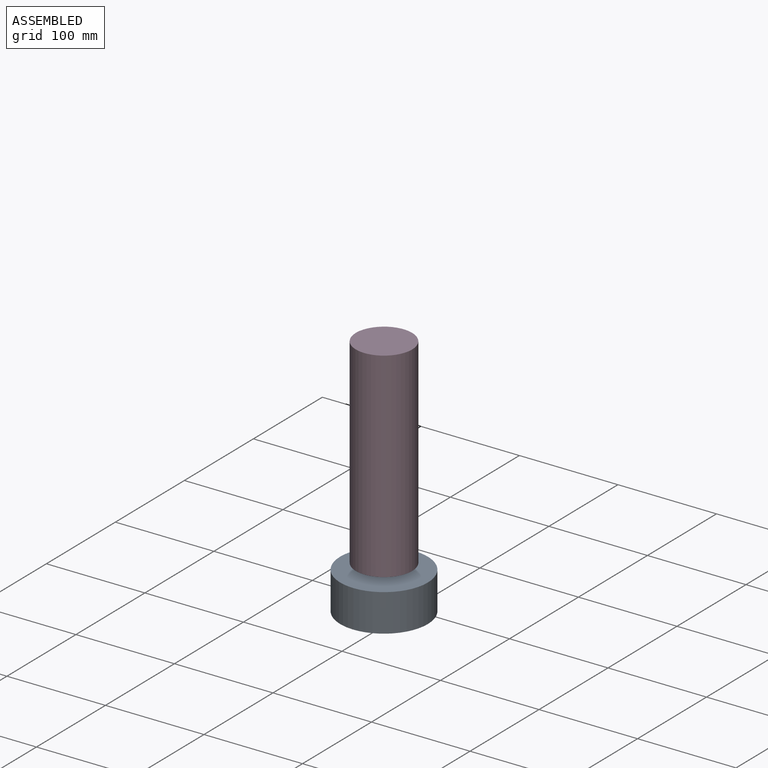
[diagram: assembled view]
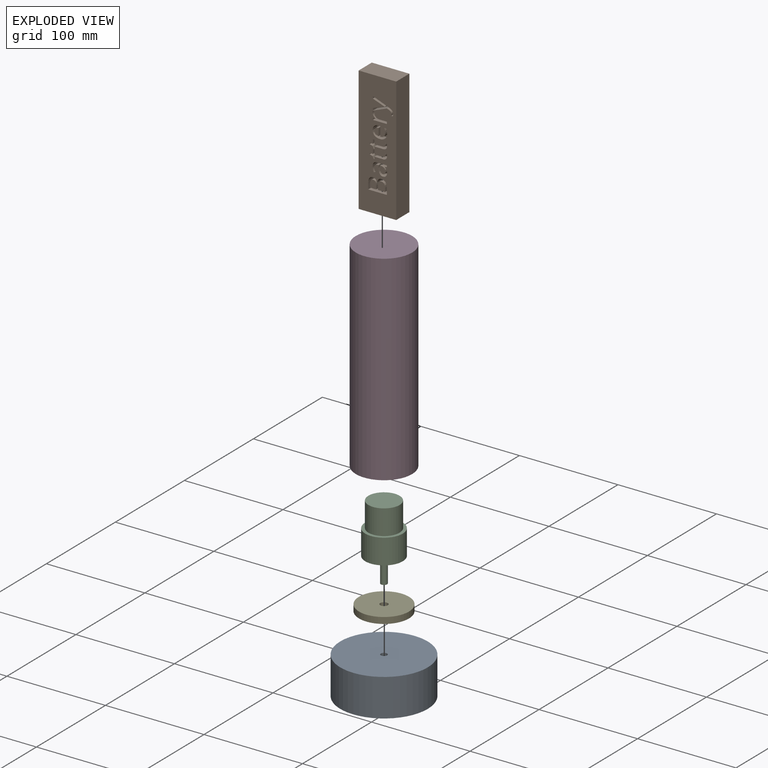
[diagram: exploded view]
GUIDED TOUR — MATED ASSEMBLY (Onshape document 1833e53e65c8655d361f19d9, AutoMate assembly 1833e53e65c8655d361f19d9_b5952b8d5b761dd84507691a_6c6ec64aa4249d387026ec80_default)

This assembly has 5 components, labeled P0..P4 below (a component is one placed occurrence of a part; the same part can appear more than once), held together by 4 mates. A mate is a constraint between two components; its type names the relative motion it leaves free:
  FASTENED — locks the two components together rigidly (no relative motion).
Axis/direction vectors are unit vectors and 'through' points are millimeter coordinates, both in the assembly's world frame.

MATES
  1. FASTENED "Fastened 2": P4 <-> P2, direction (0.000, 0.000, 1.000) through (-15.76, -59.32, -43.28) mm
  2. FASTENED "Fastened 3": P4 <-> P3, direction (0.000, 0.000, -1.000) through (-15.76, -59.32, -49.63) mm
  3. FASTENED "Fastened 4": P0 <-> P2, direction (0.000, 0.000, -1.000) through (-15.76, -59.32, -68.68) mm
  4. FASTENED "Fastened 1": P3 <-> P1, direction (0.000, 0.000, -1.000) through (-15.76, -59.32, 150.39) mm

ASSEMBLY ORDER
  1. P2 — the base component [order heuristic]
  2. P4 — core [order heuristic]
  3. P0 — core [order heuristic]
  4. P3 — core [order heuristic]
  5. P1 [order verified]
Order-tag legend:
  [order verified] — this step's position reverses a verified removal order: the component was checked to insert without passing through the ones already placed.
  [order heuristic] — the first 4 components form the assembly's core: parts whose collision-free extraction could not be verified, listed in mate-graph order.

Of the 5 components, 0 carry the full construction recipe — the FeatureScript program that regenerates the part's solid from scratch; the rest are supplied as boundary geometry only.
Each toured component is shown spotlighted twice — in the assembled view, then in the exploded view, where a leader line traces a displaced component back to its assembled socket (saturated green if recipe-attached, orange if geometry-only; every other component desaturated gray) — followed by its recipe or geometry summary and the mates that hold it.
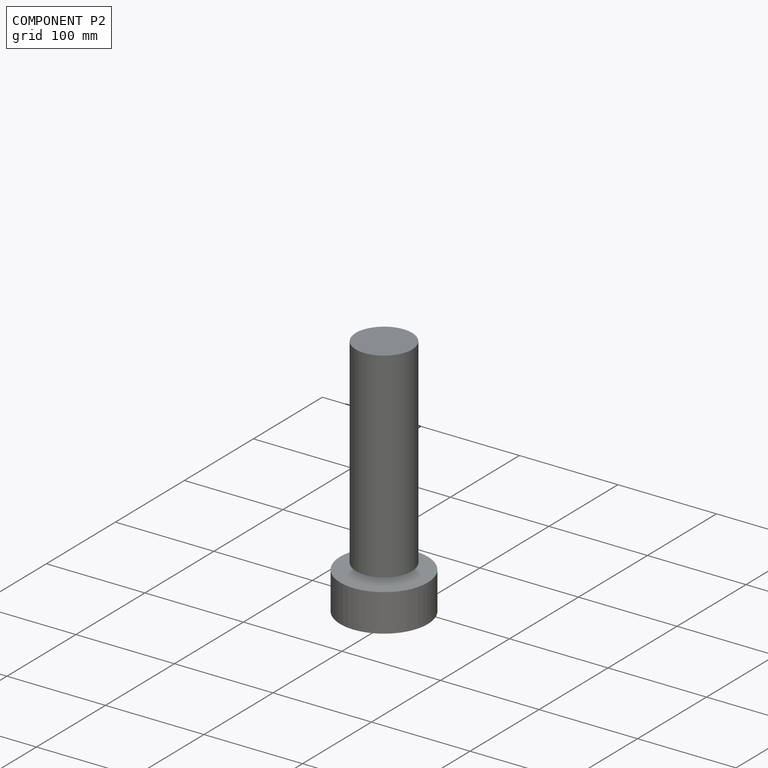
[diagram: component P2 — assembled]
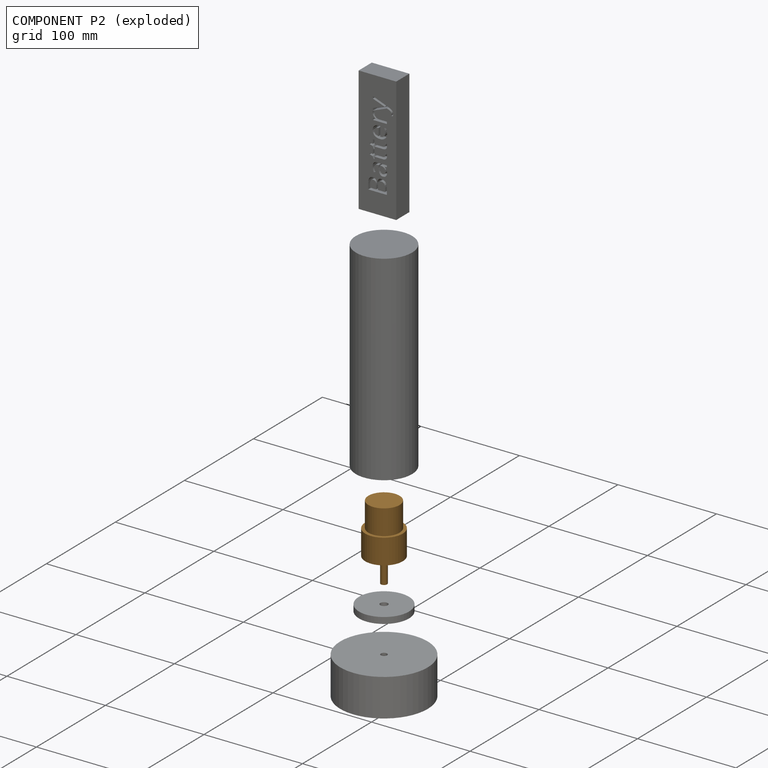
[diagram: component P2 — exploded]
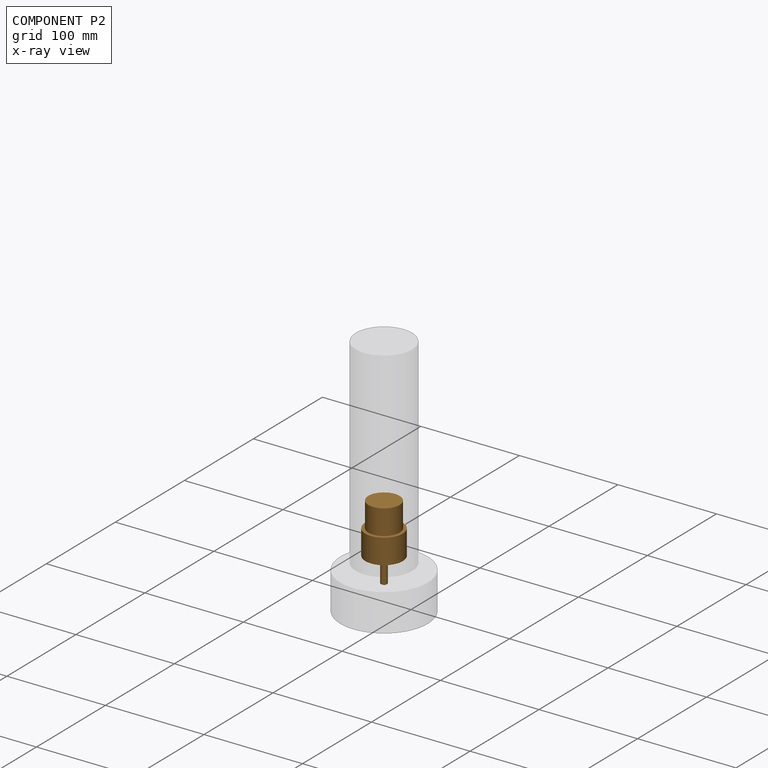
[diagram: component P2 — x-ray view]
COMPONENT P2 — geometry summary (no construction recipe available for this part):
  bounding box: 76.2 x 38.1 x 38.1 mm
  B-rep topology: 1 solid, 7 faces, 18 edges
  volume: 49873 mm^3 (45% of its bounding box)
  symmetry: revolution-symmetric about the z axis through its bounding-box center; mirror-symmetric across its x mid-plane, y mid-plane
Held by: FASTENED mate "Fastened 2" to P4; FASTENED mate "Fastened 4" to P0.
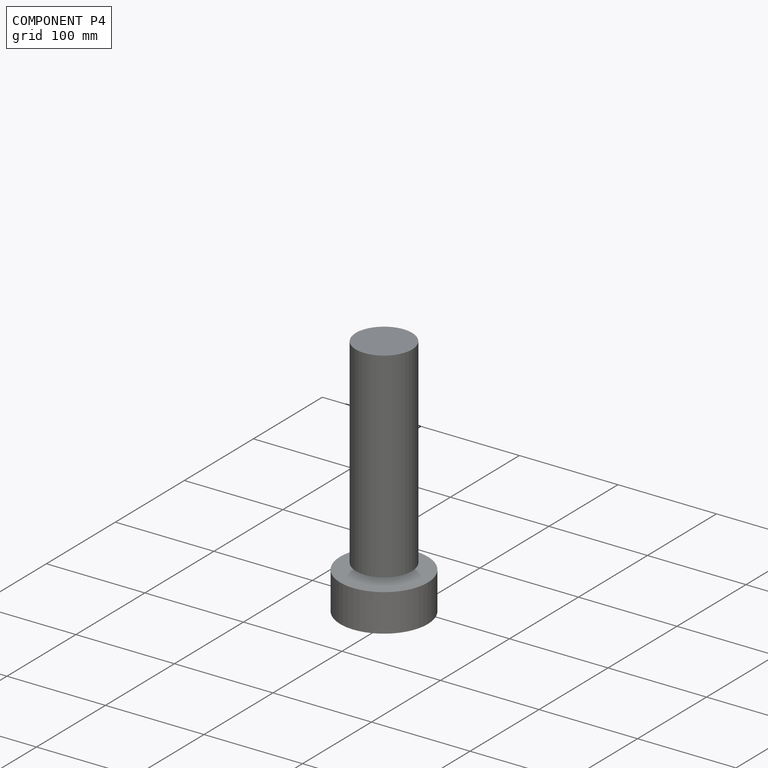
[diagram: component P4 — assembled]
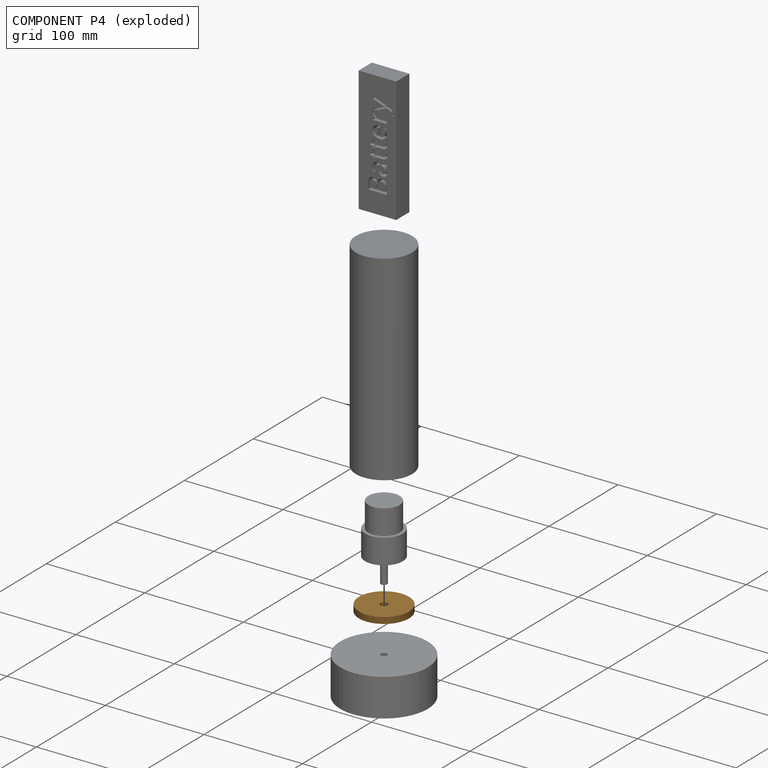
[diagram: component P4 — exploded]
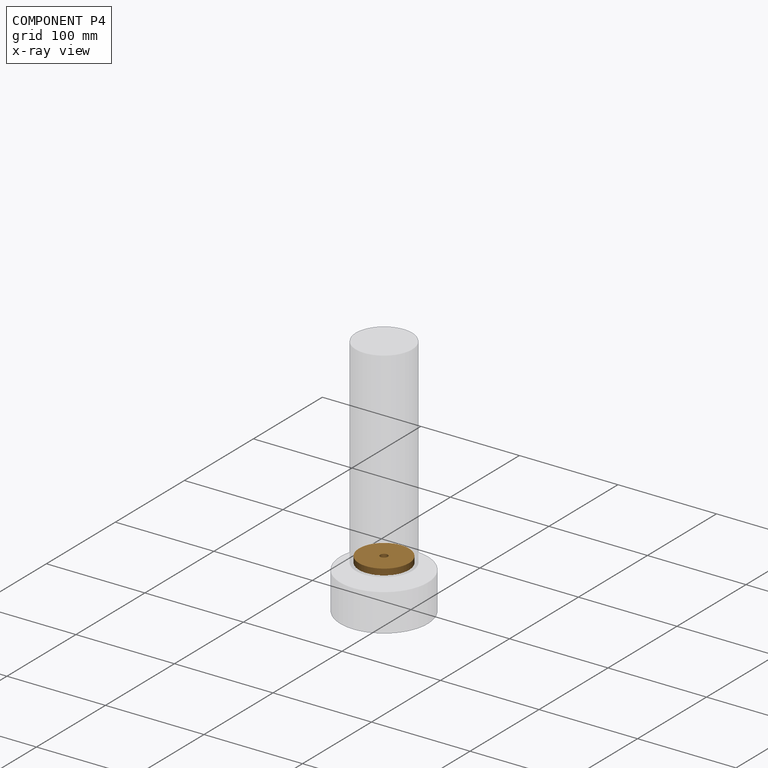
[diagram: component P4 — x-ray view]
COMPONENT P4 — geometry summary (no construction recipe available for this part):
  bounding box: 50.8 x 50.8 x 6.4 mm
  B-rep topology: 1 solid, 4 faces, 12 edges
  volume: 12581 mm^3 (77% of its bounding box)
  symmetry: 2-fold rotationally symmetric about the x axis; 2-fold rotationally symmetric about the y axis; revolution-symmetric about the z axis through its bounding-box center; mirror-symmetric across its x mid-plane, y mid-plane, z mid-plane
Held by: FASTENED mate "Fastened 2" to P2; FASTENED mate "Fastened 3" to P3.
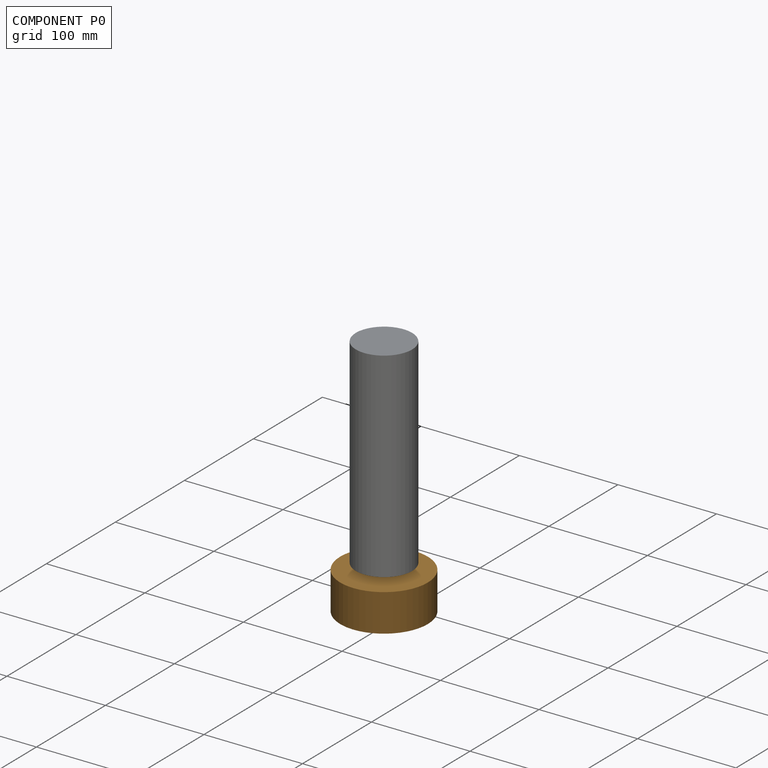
[diagram: component P0 — assembled]
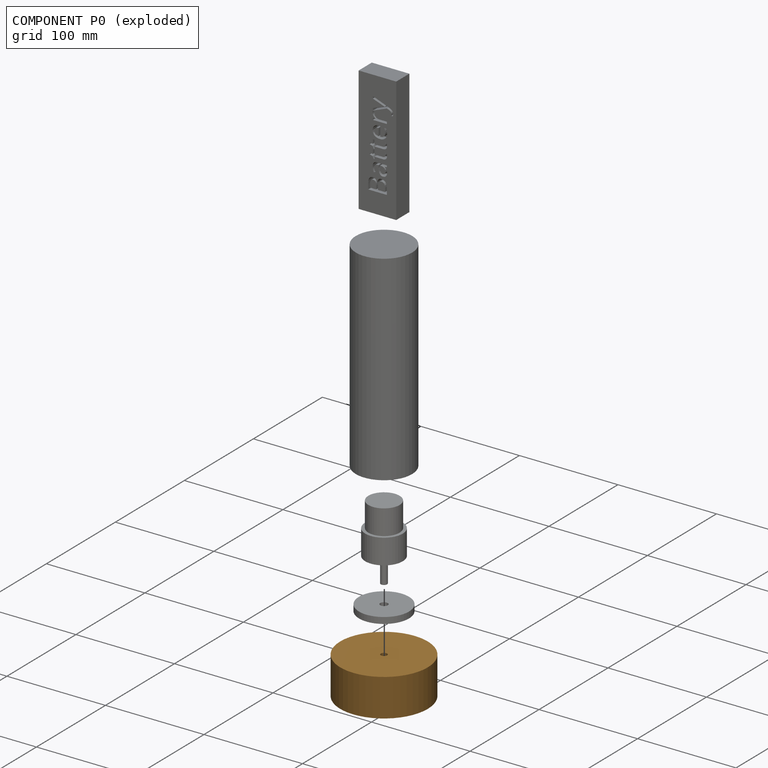
[diagram: component P0 — exploded]
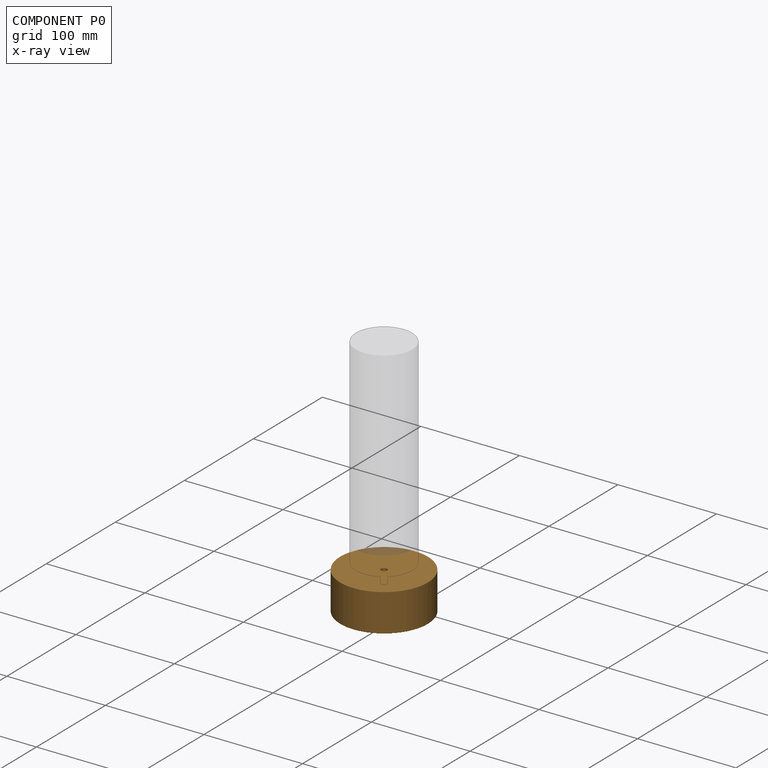
[diagram: component P0 — x-ray view]
COMPONENT P0 — geometry summary (no construction recipe available for this part):
  bounding box: 88.9 x 88.9 x 38.1 mm
  B-rep topology: 1 solid, 6 faces, 18 edges
  volume: 176297 mm^3 (59% of its bounding box)
  symmetry: revolution-symmetric about the z axis through its bounding-box center; mirror-symmetric across its x mid-plane, y mid-plane
Held by: FASTENED mate "Fastened 4" to P2.
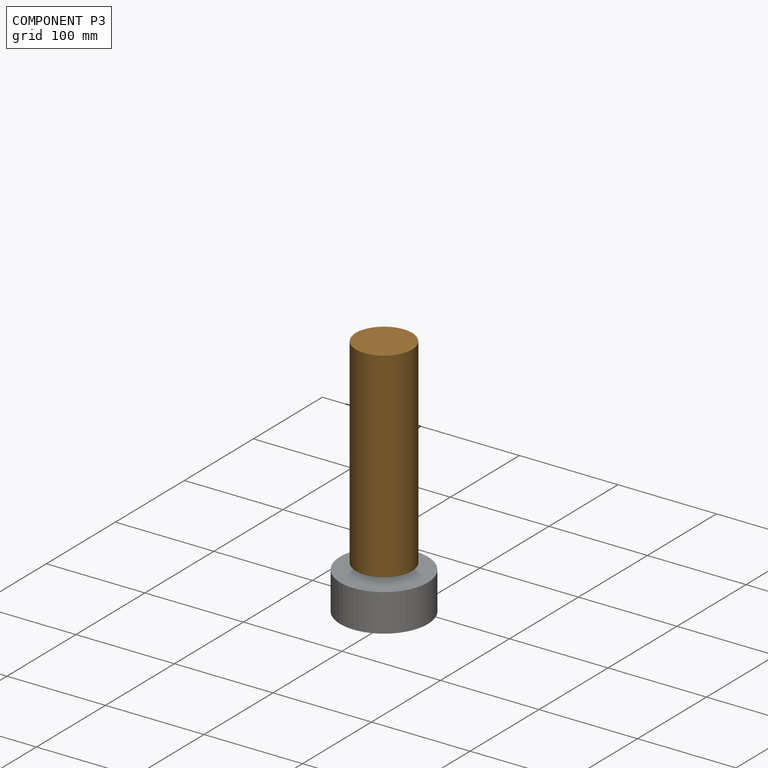
[diagram: component P3 — assembled]
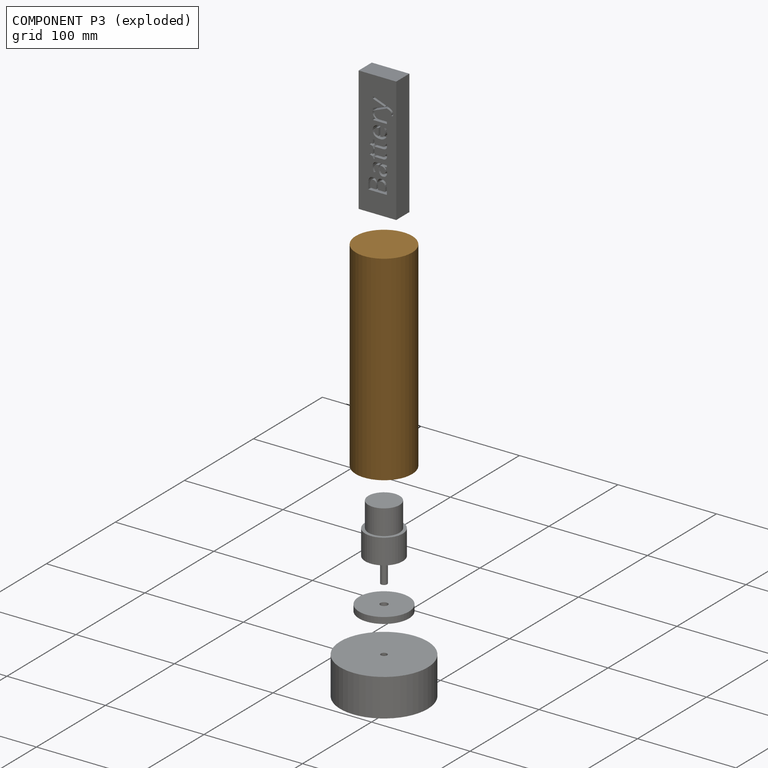
[diagram: component P3 — exploded]
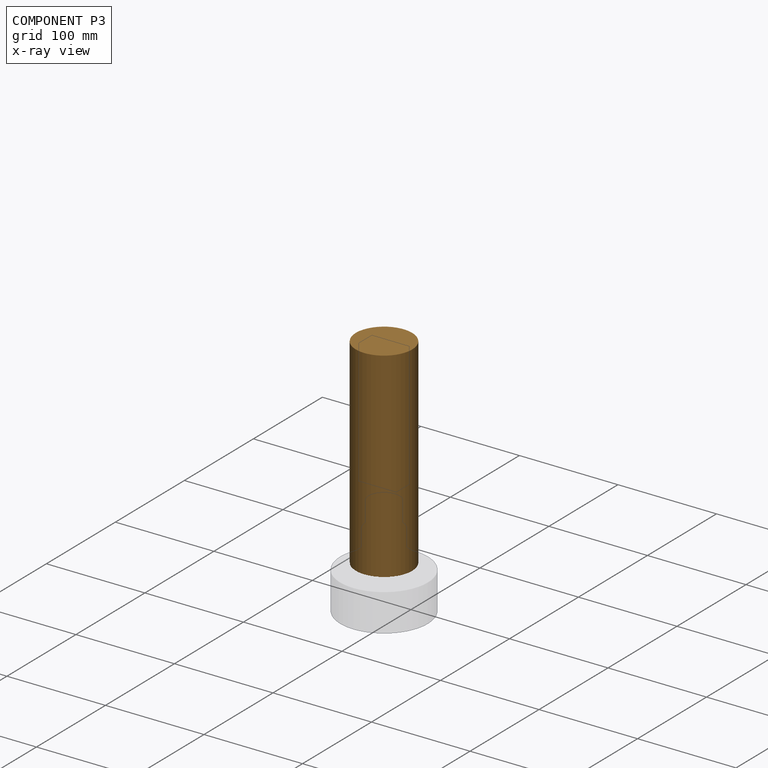
[diagram: component P3 — x-ray view]
COMPONENT P3 — geometry summary (no construction recipe available for this part):
  bounding box: 203.2 x 57.2 x 57.2 mm
  B-rep topology: 1 solid, 5 faces, 12 edges
  volume: 115833 mm^3 (17% of its bounding box)
  symmetry: revolution-symmetric about the z axis through its bounding-box center; mirror-symmetric across its x mid-plane, y mid-plane
Held by: FASTENED mate "Fastened 3" to P4; FASTENED mate "Fastened 1" to P1.
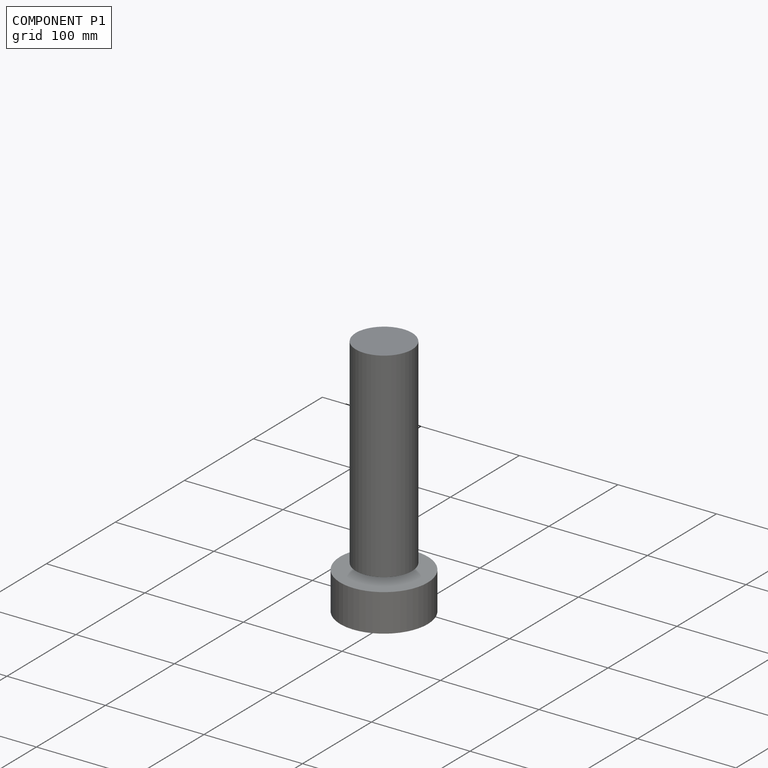
[diagram: component P1 — assembled]
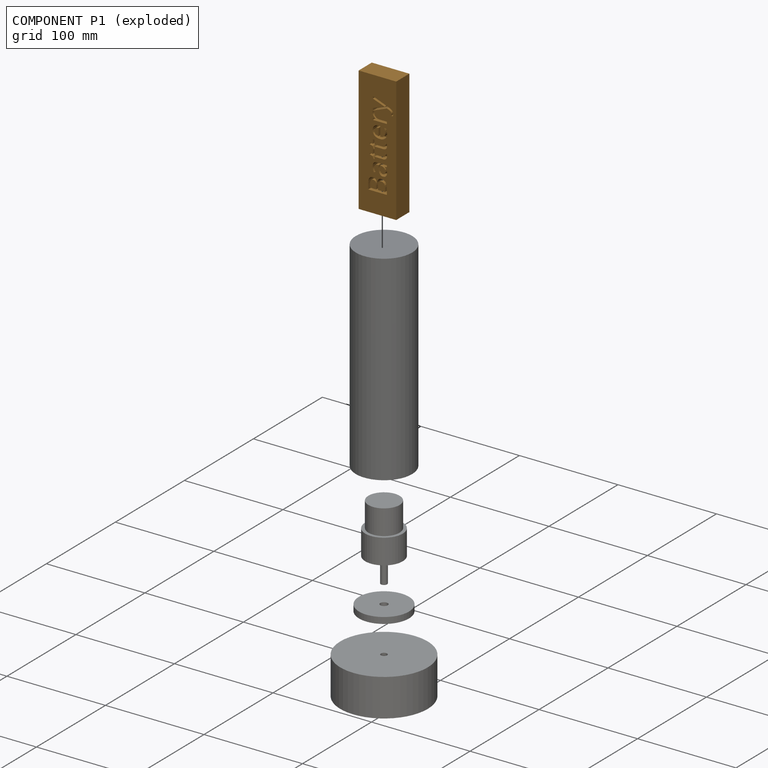
[diagram: component P1 — exploded]
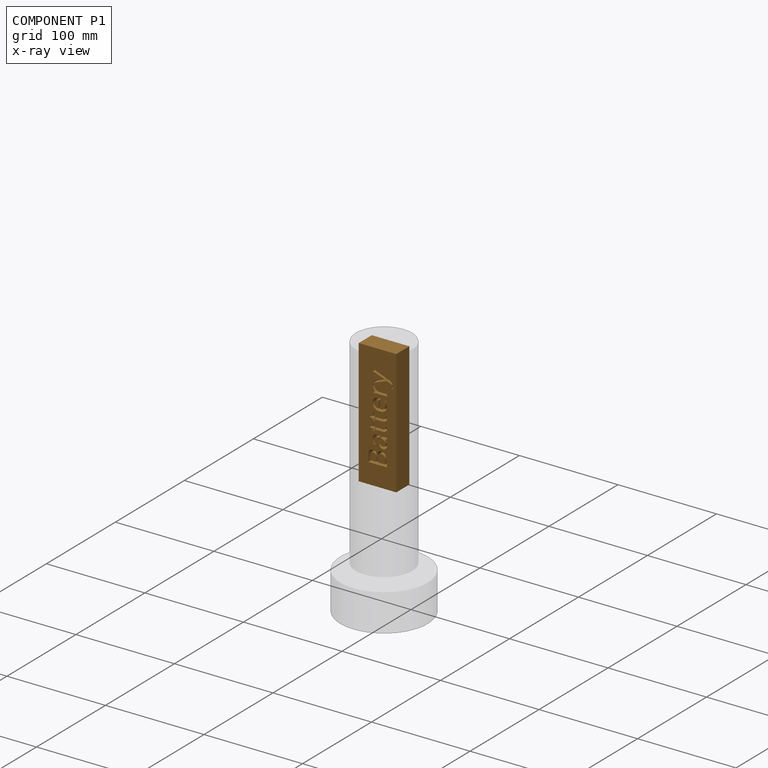
[diagram: component P1 — x-ray view]
COMPONENT P1 — geometry summary (no construction recipe available for this part):
  bounding box: 127.0 x 38.1 x 19.0 mm
  B-rep topology: 1 solid, 155 faces, 852 edges
  volume: 88738 mm^3 (97% of its bounding box)
Held by: FASTENED mate "Fastened 1" to P3.
PROVENANCE & LICENSES
Assembly (occurrences, transforms, mates, per-part STEP geometry): AutoMate dataset, Zenodo record 7776208, CC0.
Construction recipes: CADFS (HuggingFace VladPyatov/CADFS, CC-BY-4.0, layered over the ABC dataset), FeatureScript reconstruction programs keyed by ABC model id.
Join: ABC meta listings map ABC model id -> Onshape documentId; within a shared document, parts are matched by geometric signature (bounding-box dims + volume at 0.1% relative tolerance, exact B-rep face/solid counts).
Verification: no recipe attachments in this assembly (5 components, all geometry-only).
Renders: orthographic iso camera (az 35 / el 25); the floor grid conveys scale (grid pitch printed in each image; no ruler). In the exploded view each component is displaced by its stored offset vector: the offsets alone carry the explosion direction (mate normal/axis signs are not orientation cues and do not encode it), and separation distances are assigned per mate-chain, not proportionally to assembly-order depth.
